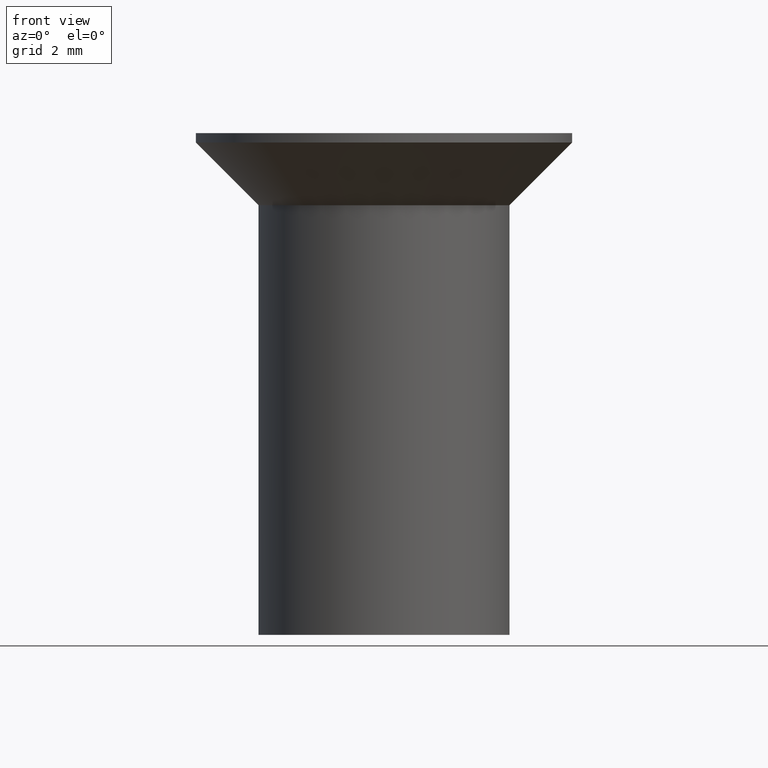
[diagram: clean part render]
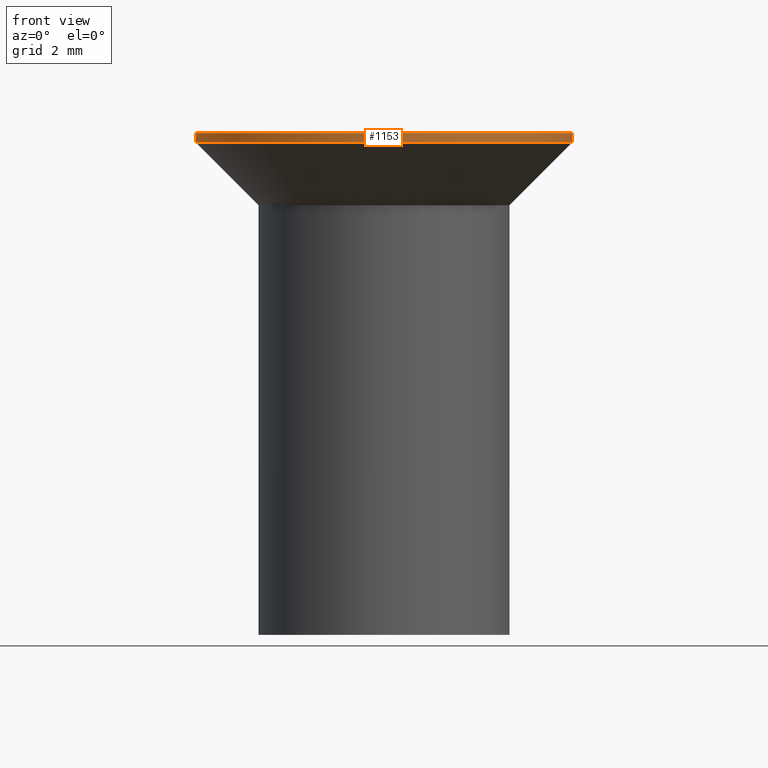
[diagram: same view with one face highlighted and labeled with its STEP entity id]
A machine part, front view. The second image highlights one B-rep face of the part: STEP entity #1153.
In plain terms, the highlighted cylindrical surface (partial cylindrical patch) has radius 6 mm, axis along (-0, -0, -1).
Its self-contained STEP definition (entity closure, byte-faithful):
#77 = DIRECTION ( 'NONE',  ( -0.0000000000000000000, -0.0000000000000000000, -1.000000000000000000 ) ) ;
#94 = FACE_OUTER_BOUND ( 'NONE', #9228, .T. ) ;
#434 = DIRECTION ( 'NONE',  ( -0.0000000000000000000, -0.0000000000000000000, -1.000000000000000000 ) ) ;
#1153 = ADVANCED_FACE ( 'NONE', ( #94 ), #4259, .T. ) ;
#1490 = AXIS2_PLACEMENT_3D ( 'NONE', #2538, #77, #11048 ) ;
#2538 = CARTESIAN_POINT ( 'NONE',  ( 0.0000000000000000000, -1.898202538678397600E-015, 7.699999999999991300 ) ) ;
#2558 = CARTESIAN_POINT ( 'NONE',  ( 6.000000000000000000, -1.163414459189985700E-015, 7.699999999999991300 ) ) ;
#2673 = DIRECTION ( 'NONE',  ( -0.0000000000000000000, -0.0000000000000000000, -1.000000000000000000 ) ) ;
#3001 = VERTEX_POINT ( 'NONE', #4104 ) ;
#4060 = DIRECTION ( 'NONE',  ( -0.0000000000000000000, -0.0000000000000000000, -1.000000000000000000 ) ) ;
#4104 = CARTESIAN_POINT ( 'NONE',  ( -6.000000000000000000, -1.898202538678397600E-015, 8.000000000000000000 ) ) ;
#4112 = DIRECTION ( 'NONE',  ( -1.000000000000000000, 0.0000000000000000000, 0.0000000000000000000 ) ) ;
#4259 = CYLINDRICAL_SURFACE ( 'NONE', #12912, 6.000000000000000000 ) ;
#4948 = CARTESIAN_POINT ( 'NONE',  ( -6.000000000000000000, -1.898202538678397600E-015, 7.699999999999991300 ) ) ;
#5567 = CARTESIAN_POINT ( 'NONE',  ( 0.0000000000000000000, -1.898202538678397600E-015, -8.000000000000000000 ) ) ;
#5984 = EDGE_CURVE ( 'NONE', #10577, #14799, #7007, .T. ) ;
#6001 = LINE ( 'NONE', #11554, #12933 ) ;
#6166 = CIRCLE ( 'NONE', #13327, 6.000000000000000000 ) ;
#6677 = ORIENTED_EDGE ( 'NONE', *, *, #15845, .F. ) ;
#7007 = CIRCLE ( 'NONE', #1490, 6.000000000000000000 ) ;
#7715 = CARTESIAN_POINT ( 'NONE',  ( 0.0000000000000000000, -1.898202538678397600E-015, 8.000000000000000000 ) ) ;
#7912 = DIRECTION ( 'NONE',  ( -1.000000000000000000, 0.0000000000000000000, 0.0000000000000000000 ) ) ;
#8034 = VERTEX_POINT ( 'NONE', #13885 ) ;
#8267 = ORIENTED_EDGE ( 'NONE', *, *, #5984, .F. ) ;
#9228 = EDGE_LOOP ( 'NONE', ( #6677, #9999, #13372, #8267 ) ) ;
#9676 = EDGE_CURVE ( 'NONE', #8034, #3001, #6166, .T. ) ;
#9999 = ORIENTED_EDGE ( 'NONE', *, *, #9676, .T. ) ;
#10577 = VERTEX_POINT ( 'NONE', #2558 ) ;
#11048 = DIRECTION ( 'NONE',  ( -1.000000000000000000, 0.0000000000000000000, 0.0000000000000000000 ) ) ;
#11554 = CARTESIAN_POINT ( 'NONE',  ( -6.000000000000000000, -1.898202538678397600E-015, -8.000000000000000000 ) ) ;
#11742 = DIRECTION ( 'NONE',  ( -0.0000000000000000000, -0.0000000000000000000, -1.000000000000000000 ) ) ;
#12366 = EDGE_CURVE ( 'NONE', #3001, #14799, #6001, .T. ) ;
#12555 = VECTOR ( 'NONE', #2673, 1000.000000000000000 ) ;
#12912 = AXIS2_PLACEMENT_3D ( 'NONE', #5567, #11742, #7912 ) ;
#12933 = VECTOR ( 'NONE', #434, 1000.000000000000000 ) ;
#13327 = AXIS2_PLACEMENT_3D ( 'NONE', #7715, #4060, #4112 ) ;
#13372 = ORIENTED_EDGE ( 'NONE', *, *, #12366, .T. ) ;
#13885 = CARTESIAN_POINT ( 'NONE',  ( 6.000000000000000000, -1.163414459189985700E-015, 8.000000000000000000 ) ) ;
#14799 = VERTEX_POINT ( 'NONE', #4948 ) ;
#15028 = CARTESIAN_POINT ( 'NONE',  ( 6.000000000000000000, -1.163414459189985700E-015, -8.000000000000000000 ) ) ;
#15040 = LINE ( 'NONE', #15028, #12555 ) ;
#15845 = EDGE_CURVE ( 'NONE', #8034, #10577, #15040, .T. ) ;